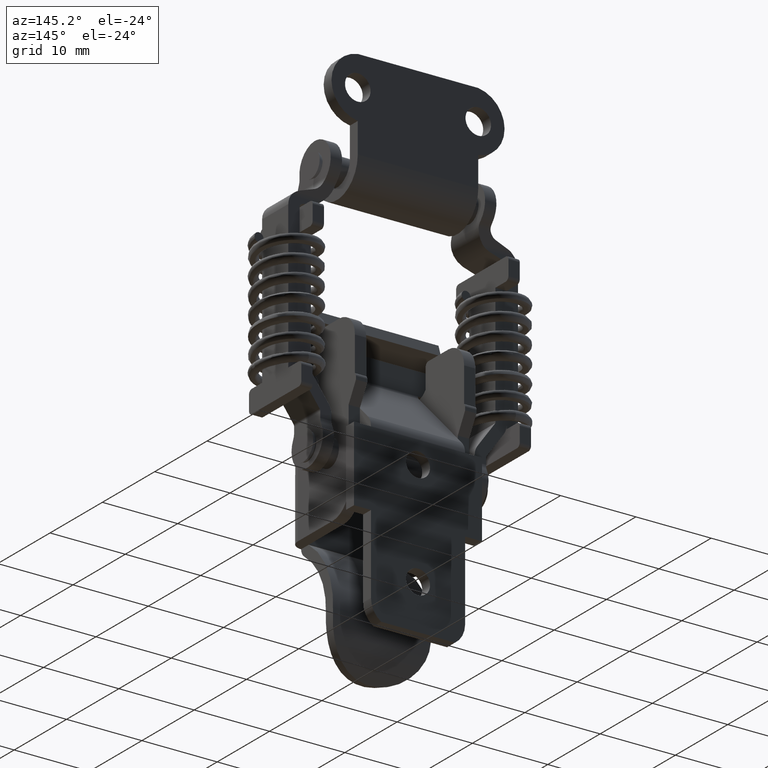
[diagram: clean part render]
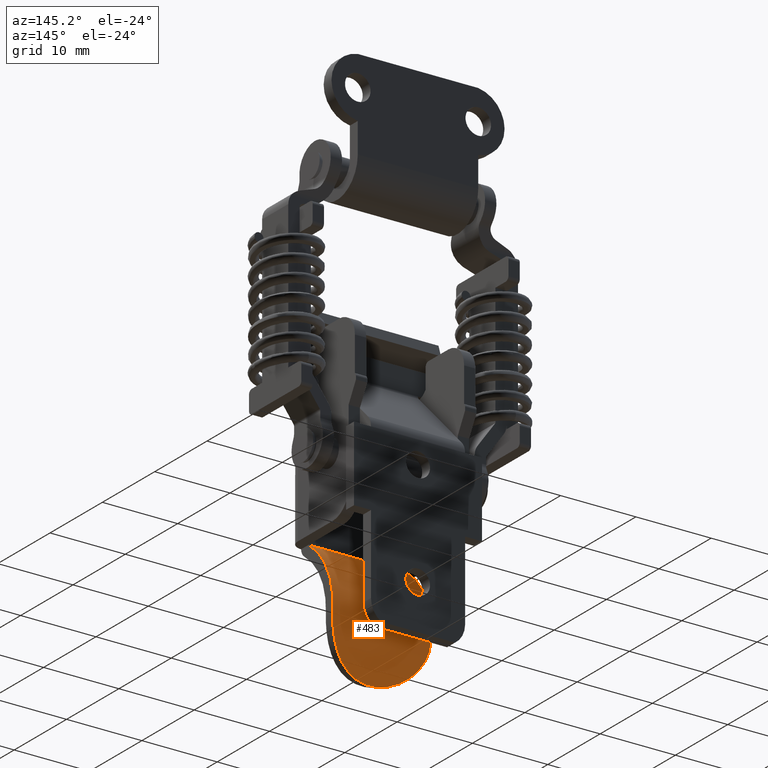
[diagram: same view with one face highlighted and labeled with its STEP entity id]
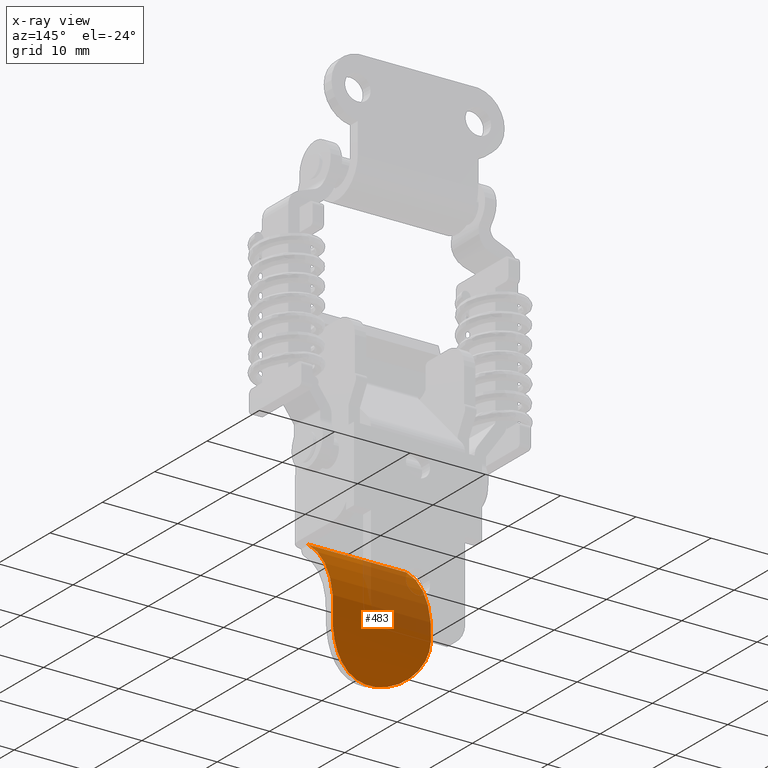
[diagram: x-ray of the same camera — body ghosted, the highlighted face saturated]
A machine part, auxiliary view. The second image highlights one B-rep face of the part: STEP entity #483.
The next image is the same camera in x-ray: the body ghosted, the highlighted face saturated — about 29% of this face is hidden behind the body in this view.
In plain terms, the highlighted cylindrical surface (partial cylindrical patch) has radius 10.9935 mm, axis along (1, 0, 0).
Its self-contained STEP definition (entity closure, byte-faithful):
#483=ADVANCED_FACE('',(#2664),#2663,.T.);
#2663=CYLINDRICAL_SURFACE('',#6392,1.09934992355E+01);
#2664=FACE_OUTER_BOUND('',#6393,.T.);
#6389=CARTESIAN_POINT('',(9.93500000000E+02,-4.84349923548E+00,-9.02359038467E+00));
#6390=DIRECTION('',(1.00000000000E+00,-0.00000000000E+00,-0.00000000000E+00));
#6391=DIRECTION('',(-0.00000000000E+00,-0.00000000000E+00,-1.00000000000E+00));
#6392=AXIS2_PLACEMENT_3D('',#6389,#6390,#6391);
#6393=EDGE_LOOP('',(#7662,#7663,#7664,#7665));
#7662=ORIENTED_EDGE('',*,*,#8404,.T.);
#7663=ORIENTED_EDGE('',*,*,#8275,.T.);
#7664=ORIENTED_EDGE('',*,*,#8406,.F.);
#7665=ORIENTED_EDGE('',*,*,#8301,.F.);
#8275=EDGE_CURVE('',#11513,#11514,#11515,.T.);
#8301=EDGE_CURVE('',#11685,#11692,#11693,.T.);
#8404=EDGE_CURVE('',#11685,#11513,#12375,.T.);
#8406=EDGE_CURVE('',#11692,#11514,#12387,.T.);
#11513=VERTEX_POINT('',#15037);
#11514=VERTEX_POINT('',#15038);
#11515=(BOUNDED_CURVE() B_SPLINE_CURVE(3,(#15039,#15040,#15041,#15042,#15043,#15044,#15045,#15046,#15047,#15048,#15049,#15050,#15051,#15052,#15053,#15054,#15055,#15056,#15057,#15058,#15059,#15060,#15061,#15062,#15063,#15064,#15065,#15066,#15067,#15068,#15069,#15070,#15071,#15072,#15073,#15074,#15075,#15076,#15077,#15078,#15079,#15080),.UNSPECIFIED.,.F.,.F.) B_SPLINE_CURVE_WITH_KNOTS((4,2,2,2,2,2,2,2,2,2,2,2,2,2,2,2,2,2,2,2,4),(-1.02212108015E-02,-8.94360083546E-03,-7.66599086946E-03,-6.38838090346E-03,-5.11077093746E-03,-3.83316097146E-03,-2.55555100546E-03,-1.91674602246E-03,-1.27794103946E-03,-3.31073459779E-07,1.27727889254E-03,1.91608387554E-03,2.55488885854E-03,3.83249882454E-03,4.47130380754E-03,5.11010879054E-03,6.38771875654E-03,7.66532872254E-03,8.30413370554E-03,8.94293868854E-03,1.02205486545E-02),.UNSPECIFIED.) CURVE() GEOMETRIC_REPRESENTATION_ITEM() RATIONAL_B_SPLINE_CURVE((1.00000000000E+00,1.00000000000E+00,1.00000000000E+00,1.00000000000E+00,1.00000000000E+00,1.00000000000E+00,1.00000000000E+00,1.00000000000E+00,1.00000000000E+00,1.00000000000E+00,1.00000000000E+00,1.00000000000E+00,1.00000000000E+00,1.00000000000E+00,1.00000000000E+00,1.00000000000E+00,1.00000000000E+00,1.00000000000E+00,1.00000000000E+00,1.00000000000E+00,1.00000000000E+00,1.00000000000E+00,1.00000000000E+00,1.00000000000E+00,1.00000000000E+00,1.00000000000E+00,1.00000000000E+00,1.00000000000E+00,1.00000000000E+00,1.00000000000E+00,1.00000000000E+00,1.00000000000E+00,1.00000000000E+00,1.00000000000E+00,1.00000000000E+00,1.00000000000E+00,1.00000000000E+00,1.00000000000E+00,1.00000000000E+00,1.00000000000E+00,1.00000000000E+00,1.00000000000E+00)) REPRESENTATION_ITEM('') );
#11685=VERTEX_POINT('',#15234);
#11692=VERTEX_POINT('',#15238);
#11693=LINE('',#15239,#15240);
#12375=CIRCLE('',#15642,1.09934992355E+01);
#12387=CIRCLE('',#15650,1.09934992355E+01);
#15037=CARTESIAN_POINT('',(6.50000000000E+00,6.10956738231E+00,-9.96558672581E+00));
#15038=CARTESIAN_POINT('',(-6.50000000000E+00,6.10956738231E+00,-9.96558672581E+00));
#15039=CARTESIAN_POINT('',(6.50000000000E+00,6.10956738231E+00,-9.96558672581E+00));
#15040=CARTESIAN_POINT('',(6.50000000000E+00,6.07251278522E+00,-1.03964392171E+01));
#15041=CARTESIAN_POINT('',(6.45948995274E+00,6.01082848985E+00,-1.08169352862E+01));
#15042=CARTESIAN_POINT('',(6.29564519402E+00,5.84287648232E+00,-1.16377614431E+01));
#15043=CARTESIAN_POINT('',(6.16993647913E+00,5.73497781162E+00,-1.20416568686E+01));
#15044=CARTESIAN_POINT('',(5.84340775632E+00,5.49122782543E+00,-1.27927174075E+01));
#15045=CARTESIAN_POINT('',(5.64260035252E+00,5.35488709687E+00,-1.31441759731E+01));
#15046=CARTESIAN_POINT('',(5.16409311065E+00,5.06383820941E+00,-1.38017672471E+01));
#15047=CARTESIAN_POINT('',(4.89361712351E+00,4.91362483503E+00,-1.40978814997E+01));
#15048=CARTESIAN_POINT('',(4.29443586312E+00,4.61752444443E+00,-1.46306334000E+01));
#15049=CARTESIAN_POINT('',(3.96176322833E+00,4.47016071703E+00,-1.48692681565E+01));
#15050=CARTESIAN_POINT('',(3.25865222935E+00,4.20244726892E+00,-1.52755550489E+01));
#15051=CARTESIAN_POINT('',(2.88699145972E+00,4.08108640852E+00,-1.54453044342E+01));
#15052=CARTESIAN_POINT('',(2.29754675543E+00,3.92705792446E+00,-1.56524482235E+01));
#15053=CARTESIAN_POINT('',(2.09471099430E+00,3.88026112696E+00,-1.57136850479E+01));
#15054=CARTESIAN_POINT('',(1.68664961686E+00,3.79949384640E+00,-1.58177078440E+01));
#15055=CARTESIAN_POINT('',(1.48063138864E+00,3.76525924672E+00,-1.58608608792E+01));
#15056=CARTESIAN_POINT('',(8.56617561659E-01,3.68213277384E+00,-1.59646626506E+01));
#15057=CARTESIAN_POINT('',(4.32713061097E-01,3.65279366112E+00,-1.59999814615E+01));
#15058=CARTESIAN_POINT('',(-4.32040793682E-01,3.65276322845E+00,-1.60000185241E+01));
#15059=CARTESIAN_POINT('',(-8.56380262944E-01,3.68207775839E+00,-1.59647328285E+01));
#15060=CARTESIAN_POINT('',(-1.48155537746E+00,3.76539405839E+00,-1.58606917962E+01));
#15061=CARTESIAN_POINT('',(-1.68804842939E+00,3.79972896578E+00,-1.58174111899E+01));
#15062=CARTESIAN_POINT('',(-2.09722465540E+00,3.88080080163E+00,-1.57129837604E+01));
#15063=CARTESIAN_POINT('',(-2.29971069199E+00,3.92758560400E+00,-1.56517490715E+01));
#15064=CARTESIAN_POINT('',(-2.88817166650E+00,4.08147090519E+00,-1.54447662134E+01));
#15065=CARTESIAN_POINT('',(-3.26003931607E+00,4.20289116079E+00,-1.52749422935E+01));
#15066=CARTESIAN_POINT('',(-3.78857289485E+00,4.40426004626E+00,-1.49692495004E+01));
#15067=CARTESIAN_POINT('',(-3.96067738692E+00,4.47500021100E+00,-1.48581219923E+01));
#15068=CARTESIAN_POINT('',(-4.28908246981E+00,4.61896899265E+00,-1.46216155763E+01));
#15069=CARTESIAN_POINT('',(-4.44572744156E+00,4.69227029961E+00,-1.44961778111E+01));
#15070=CARTESIAN_POINT('',(-4.89366027875E+00,4.91368366836E+00,-1.40977169620E+01));
#15071=CARTESIAN_POINT('',(-5.16319438678E+00,5.06332674734E+00,-1.38028167391E+01));
#15072=CARTESIAN_POINT('',(-5.64175388972E+00,5.35433718869E+00,-1.31455241380E+01));
#15073=CARTESIAN_POINT('',(-5.84279578602E+00,5.49083956005E+00,-1.27935722838E+01));
#15074=CARTESIAN_POINT('',(-6.08678590975E+00,5.67287295665E+00,-1.22331877834E+01));
#15075=CARTESIAN_POINT('',(-6.15860178424E+00,5.72986112091E+00,-1.20407436858E+01));
#15076=CARTESIAN_POINT('',(-6.28278828937E+00,5.83512641683E+00,-1.16439181211E+01));
#15077=CARTESIAN_POINT('',(-6.33523946964E+00,5.88354152296E+00,-1.14385642262E+01));
#15078=CARTESIAN_POINT('',(-6.45945169167E+00,6.01063542665E+00,-1.08187763829E+01));
#15079=CARTESIAN_POINT('',(-6.50000000000E+00,6.07249203623E+00,-1.03966804762E+01));
#15080=CARTESIAN_POINT('',(-6.50000000000E+00,6.10956738231E+00,-9.96558672581E+00));
#15234=CARTESIAN_POINT('',(6.50000000000E+00,1.43597860987E+00,0.00000000000E+00));
#15238=CARTESIAN_POINT('',(-6.50000000000E+00,1.43597860987E+00,0.00000000000E+00));
#15239=CARTESIAN_POINT('',(6.50000000000E+00,1.43597860987E+00,7.10542735760E-15));
#15240=VECTOR('',#15241,1.30000000000E+01);
#15241=DIRECTION('',(-1.00000000000E+00,0.00000000000E+00,0.00000000000E+00));
#15639=CARTESIAN_POINT('',(6.50000000000E+00,-4.84349923548E+00,-9.02359038467E+00));
#15640=DIRECTION('',(-1.00000000000E+00,0.00000000000E+00,0.00000000000E+00));
#15641=DIRECTION('',(-0.00000000000E+00,-0.00000000000E+00,-1.00000000000E+00));
#15642=AXIS2_PLACEMENT_3D('',#15639,#15640,#15641);
#15647=CARTESIAN_POINT('',(-6.50000000000E+00,-4.84349923548E+00,-9.02359038467E+00));
#15648=DIRECTION('',(-1.00000000000E+00,0.00000000000E+00,0.00000000000E+00));
#15649=DIRECTION('',(-0.00000000000E+00,-0.00000000000E+00,-1.00000000000E+00));
#15650=AXIS2_PLACEMENT_3D('',#15647,#15648,#15649);